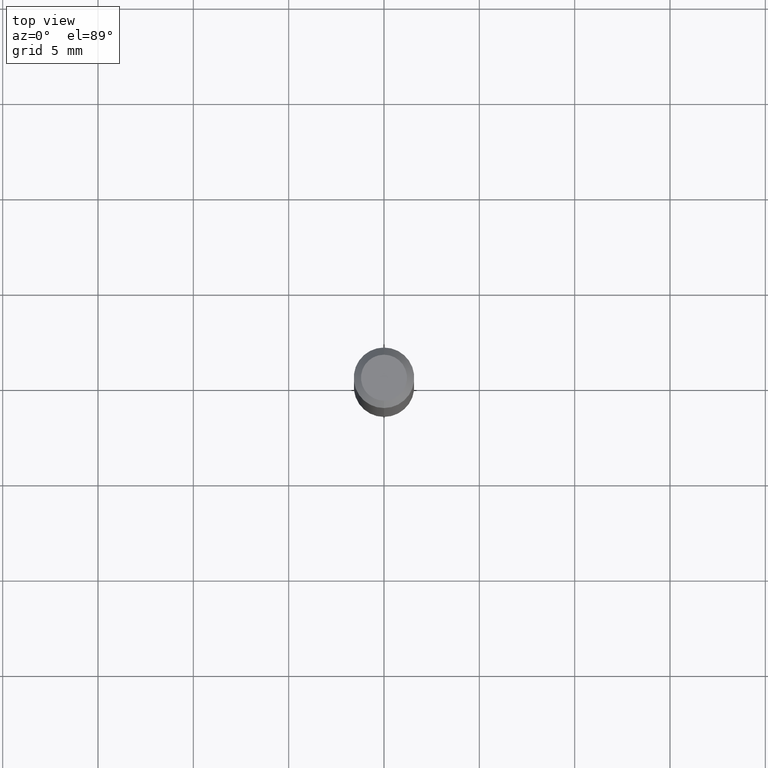
[diagram: clean part render]
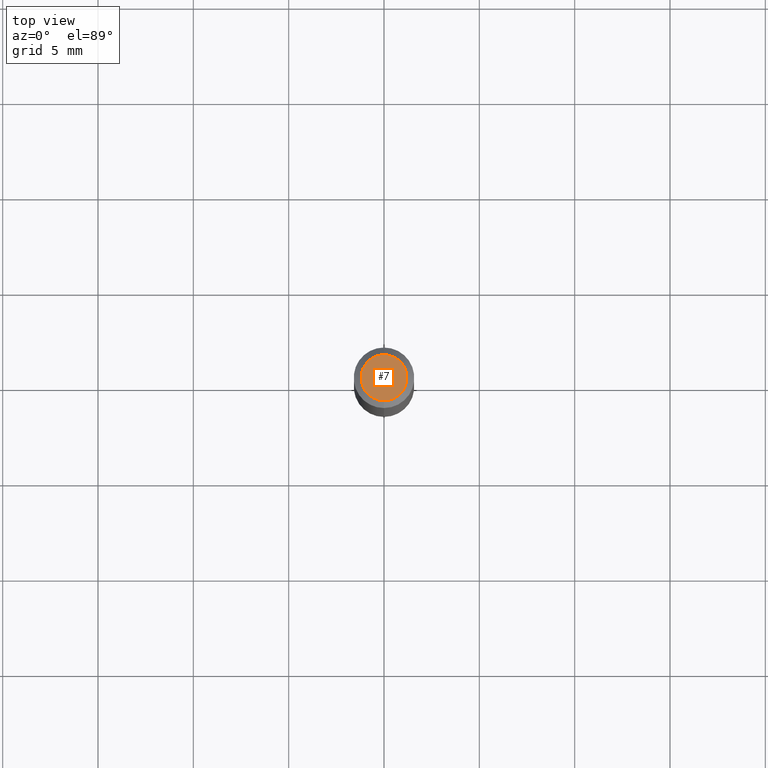
[diagram: same view with one face highlighted and labeled with its STEP entity id]
A machine part, top view. The second image highlights one B-rep face of the part: STEP entity #7.
In plain terms, the highlighted planar face has unit normal (0, -0, -1).
Its self-contained STEP definition (entity closure, byte-faithful):
#7 = ADVANCED_FACE ( 'NONE', ( #64 ), #455, .F. ) ;
#63 = CIRCLE ( 'NONE', #509, 0.04750000000000000749 ) ;
#64 = FACE_OUTER_BOUND ( 'NONE', #519, .T. ) ;
#123 = EDGE_CURVE ( 'NONE', #474, #348, #63, .T. ) ;
#128 = EDGE_CURVE ( 'NONE', #348, #474, #359, .T. ) ;
#145 = CARTESIAN_POINT ( 'NONE',  ( 3.316907271900976589E-16, 0.04750000000000000749, -2.923346626010003347E-17 ) ) ;
#224 = CARTESIAN_POINT ( 'NONE',  ( -6.681261293831673262E-45, 9.534592375949691009E-31, 2.731458040629538191E-16 ) ) ;
#227 = DIRECTION ( 'NONE',  ( 2.446042075129880138E-29, -3.490660385085830172E-15, -1.000000000000000000 ) ) ;
#240 = CARTESIAN_POINT ( 'NONE',  ( 3.840629472727447874E-16, 0.04750000000000000749, 1.073394357713768638E-16 ) ) ;
#243 = CARTESIAN_POINT ( 'NONE',  ( -3.773273898774340269E-16, -0.04750000000000000749, 4.389521723545307622E-16 ) ) ;
#244 = AXIS2_PLACEMENT_3D ( 'NONE', #145, #227, #418 ) ;
#262 = CARTESIAN_POINT ( 'NONE',  ( -6.681261293831673262E-45, 9.534592375949691009E-31, 2.731458040629538191E-16 ) ) ;
#266 = AXIS2_PLACEMENT_3D ( 'NONE', #224, #389, #472 ) ;
#348 = VERTEX_POINT ( 'NONE', #240 ) ;
#359 = CIRCLE ( 'NONE', #266, 0.04750000000000000749 ) ;
#389 = DIRECTION ( 'NONE',  ( -2.446042075129880699E-29, 3.490660385085830172E-15, 1.000000000000000000 ) ) ;
#394 = ORIENTED_EDGE ( 'NONE', *, *, #123, .T. ) ;
#418 = DIRECTION ( 'NONE',  ( 6.982962677686265922E-15, 1.000000000000000000, -3.490660385085830172E-15 ) ) ;
#427 = DIRECTION ( 'NONE',  ( -6.982962677686265133E-15, -1.000000000000000000, 3.490660385085830172E-15 ) ) ;
#452 = ORIENTED_EDGE ( 'NONE', *, *, #128, .T. ) ;
#455 = PLANE ( 'NONE',  #244 ) ;
#460 = DIRECTION ( 'NONE',  ( -2.446042075129880699E-29, 3.490660385085830172E-15, 1.000000000000000000 ) ) ;
#472 = DIRECTION ( 'NONE',  ( -6.982962677686265133E-15, -1.000000000000000000, 3.490660385085830172E-15 ) ) ;
#474 = VERTEX_POINT ( 'NONE', #243 ) ;
#509 = AXIS2_PLACEMENT_3D ( 'NONE', #262, #460, #427 ) ;
#519 = EDGE_LOOP ( 'NONE', ( #452, #394 ) ) ;